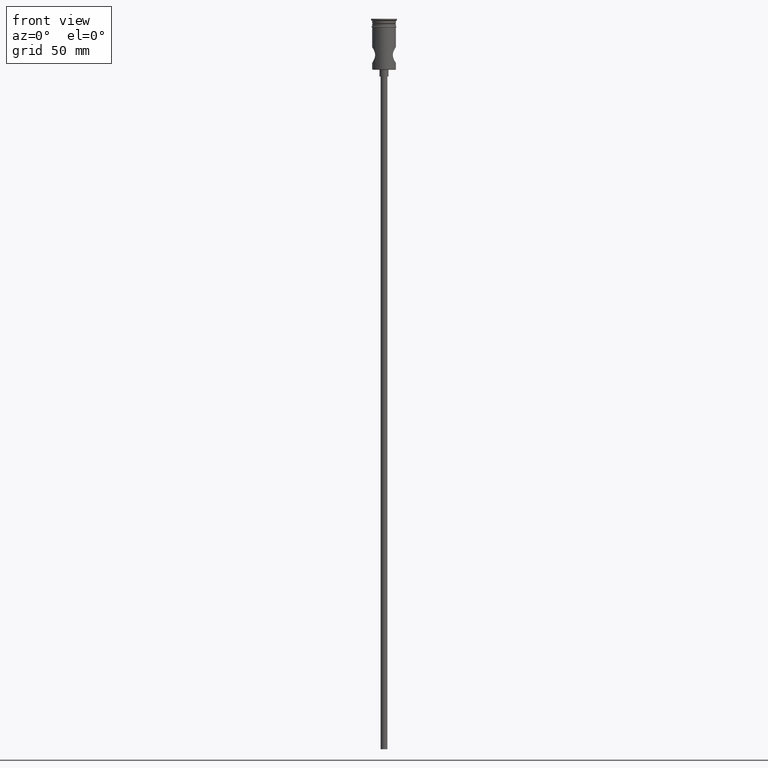
[diagram: clean part render]
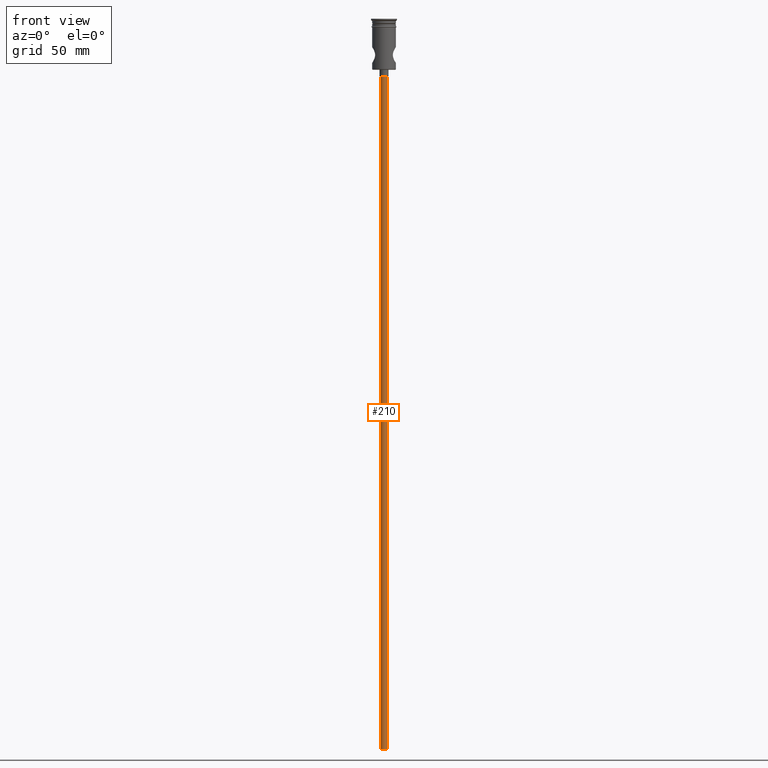
[diagram: same view with one face highlighted and labeled with its STEP entity id]
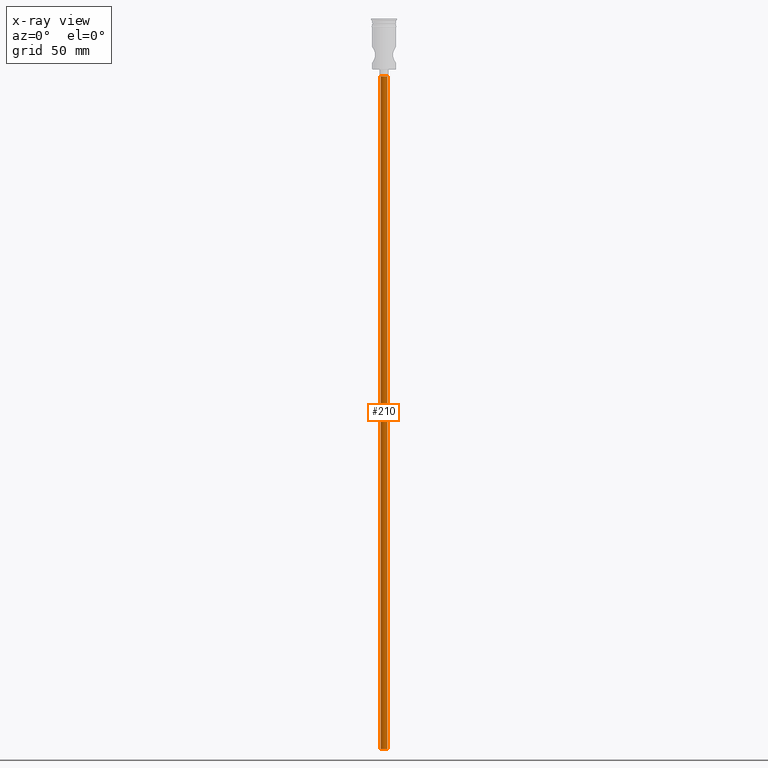
[diagram: x-ray of the same camera — body ghosted, the highlighted face saturated]
A machine part, front view. The second image highlights one B-rep face of the part: STEP entity #210.
The next image is the same camera in x-ray: the body ghosted, the highlighted face saturated — about 0% of this face is hidden behind the body in this view.
In plain terms, the highlighted cylindrical surface (edge-blend (fillet) strip) has radius 1.5 mm, axis along (-0, -0, 1).
Its self-contained STEP definition (entity closure, byte-faithful):
#54 = LINE ( 'NONE', #825, #1361 ) ;
#126 = CARTESIAN_POINT ( 'NONE',  ( 0.000000000000000000, 0.000000000000000000, -25.50000000000000000 ) ) ;
#161 = CIRCLE ( 'NONE', #1217, 1.500000000000000222 ) ;
#177 = CARTESIAN_POINT ( 'NONE',  ( 0.000000000000000000, 0.000000000000000000, -322.5000000000000000 ) ) ;
#178 = CARTESIAN_POINT ( 'NONE',  ( 0.000000000000000000, 0.000000000000000000, -322.5000000000000000 ) ) ;
#202 = AXIS2_PLACEMENT_3D ( 'NONE', #177, #487, #627 ) ;
#209 = ORIENTED_EDGE ( 'NONE', *, *, #1216, .F. ) ;
#210 = ADVANCED_FACE ( 'NONE', ( #729 ), #1181, .T. ) ;
#218 = VERTEX_POINT ( 'NONE', #1168 ) ;
#226 = AXIS2_PLACEMENT_3D ( 'NONE', #178, #951, #519 ) ;
#306 = CARTESIAN_POINT ( 'NONE',  ( -1.500000000000000222, 1.836970198721030181E-16, -322.5000000000000000 ) ) ;
#322 = ORIENTED_EDGE ( 'NONE', *, *, #876, .T. ) ;
#337 = LINE ( 'NONE', #650, #423 ) ;
#339 = EDGE_LOOP ( 'NONE', ( #209, #1009, #322, #923 ) ) ;
#423 = VECTOR ( 'NONE', #532, 1000.000000000000000 ) ;
#460 = DIRECTION ( 'NONE',  ( -1.000000000000000000, 0.000000000000000000, 0.000000000000000000 ) ) ;
#475 = CARTESIAN_POINT ( 'NONE',  ( -1.500000000000000222, 1.836970198721030181E-16, -25.50000000000000000 ) ) ;
#487 = DIRECTION ( 'NONE',  ( -0.000000000000000000, -0.000000000000000000, 1.000000000000000000 ) ) ;
#519 = DIRECTION ( 'NONE',  ( -1.000000000000000000, 0.000000000000000000, 0.000000000000000000 ) ) ;
#532 = DIRECTION ( 'NONE',  ( -0.000000000000000000, -0.000000000000000000, 1.000000000000000000 ) ) ;
#546 = CIRCLE ( 'NONE', #226, 1.500000000000000222 ) ;
#627 = DIRECTION ( 'NONE',  ( 1.000000000000000000, 0.000000000000000000, 0.000000000000000000 ) ) ;
#650 = CARTESIAN_POINT ( 'NONE',  ( 1.500000000000000222, 0.000000000000000000, -322.5000000000000000 ) ) ;
#729 = FACE_OUTER_BOUND ( 'NONE', #339, .T. ) ;
#825 = CARTESIAN_POINT ( 'NONE',  ( -1.500000000000000222, 1.836970198721030181E-16, -322.5000000000000000 ) ) ;
#876 = EDGE_CURVE ( 'NONE', #218, #1018, #337, .T. ) ;
#923 = ORIENTED_EDGE ( 'NONE', *, *, #1002, .T. ) ;
#951 = DIRECTION ( 'NONE',  ( 0.000000000000000000, 0.000000000000000000, -1.000000000000000000 ) ) ;
#1002 = EDGE_CURVE ( 'NONE', #1018, #1228, #161, .T. ) ;
#1009 = ORIENTED_EDGE ( 'NONE', *, *, #1170, .F. ) ;
#1018 = VERTEX_POINT ( 'NONE', #1240 ) ;
#1132 = DIRECTION ( 'NONE',  ( 0.000000000000000000, 0.000000000000000000, -1.000000000000000000 ) ) ;
#1147 = DIRECTION ( 'NONE',  ( -0.000000000000000000, -0.000000000000000000, 1.000000000000000000 ) ) ;
#1168 = CARTESIAN_POINT ( 'NONE',  ( 1.500000000000000222, 0.000000000000000000, -322.5000000000000000 ) ) ;
#1170 = EDGE_CURVE ( 'NONE', #218, #1378, #546, .T. ) ;
#1181 = CYLINDRICAL_SURFACE ( 'NONE', #202, 1.500000000000000222 ) ;
#1216 = EDGE_CURVE ( 'NONE', #1378, #1228, #54, .T. ) ;
#1217 = AXIS2_PLACEMENT_3D ( 'NONE', #126, #1132, #460 ) ;
#1228 = VERTEX_POINT ( 'NONE', #475 ) ;
#1240 = CARTESIAN_POINT ( 'NONE',  ( 1.500000000000000222, 0.000000000000000000, -25.50000000000000000 ) ) ;
#1361 = VECTOR ( 'NONE', #1147, 1000.000000000000000 ) ;
#1378 = VERTEX_POINT ( 'NONE', #306 ) ;